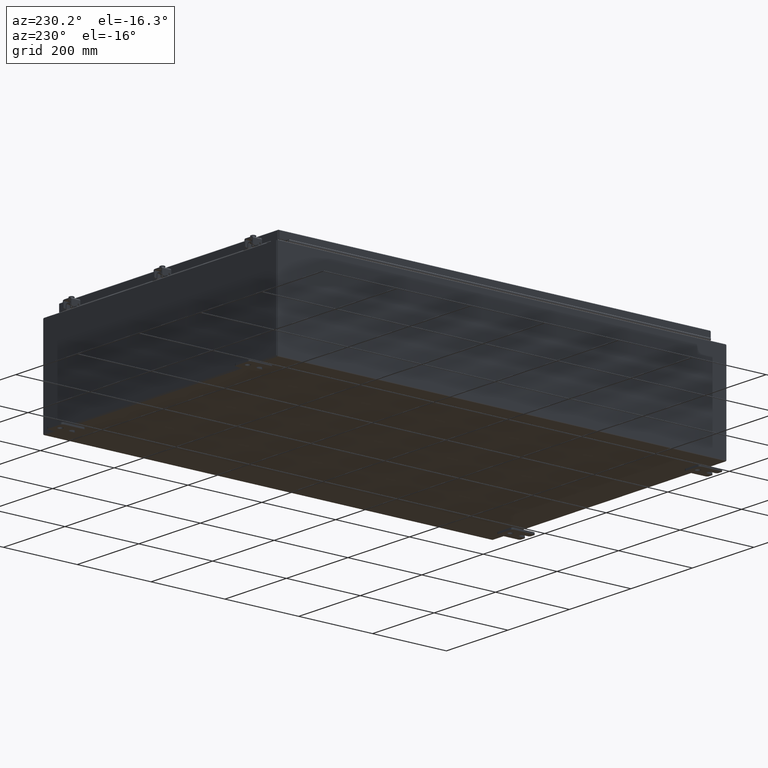
[diagram: clean part render]
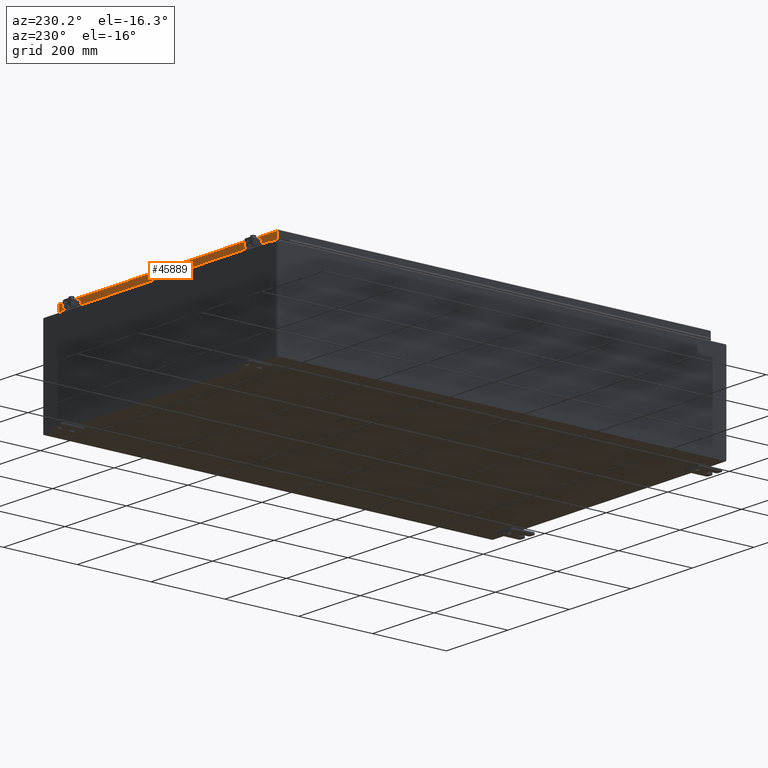
[diagram: same view with one face highlighted and labeled with its STEP entity id]
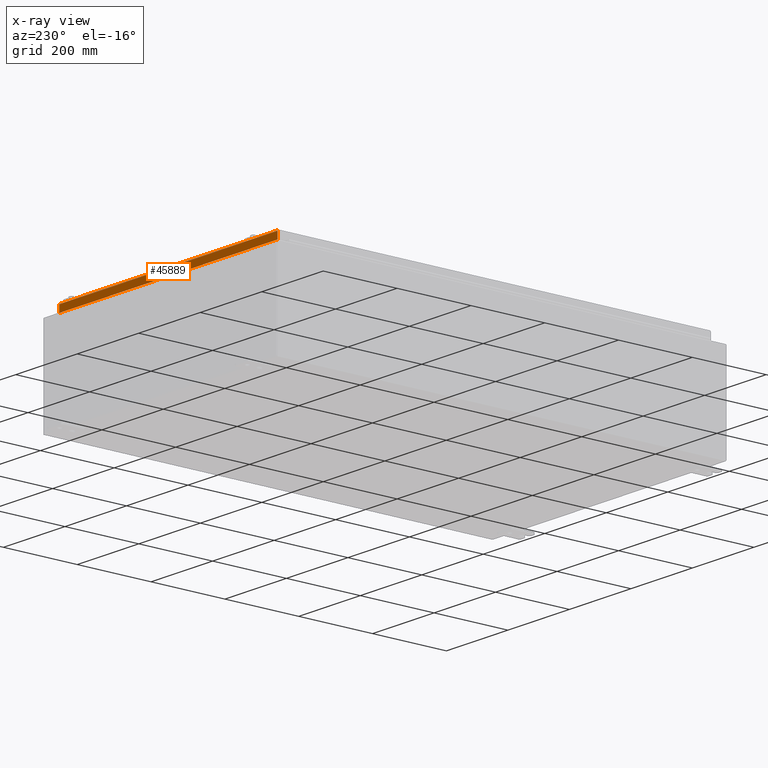
[diagram: x-ray of the same camera — body ghosted, the highlighted face saturated]
A machine part, auxiliary view. The second image highlights one B-rep face of the part: STEP entity #45889.
The next image is the same camera in x-ray: the body ghosted, the highlighted face saturated — about 0% of this face is hidden behind the body in this view.
In plain terms, the highlighted planar face has unit normal (0, -1, -0).
Its self-contained STEP definition (entity closure, byte-faithful):
#594 = VERTEX_POINT ( 'NONE', #28004 ) ;
#3018 = CARTESIAN_POINT ( 'NONE',  ( -13.98915786437626500, 23.09400000000000500, -0.07469999999999958600 ) ) ;
#3779 = EDGE_CURVE ( 'NONE', #47752, #46389, #36916, .T. ) ;
#3936 = EDGE_CURVE ( 'NONE', #594, #51683, #21087, .T. ) ;
#5770 = VECTOR ( 'NONE', #38825, 39.37007874015748100 ) ;
#5830 = DIRECTION ( 'NONE',  ( 1.000000000000000000, -8.758115402030108600E-047, 1.261330583805776300E-016 ) ) ;
#6096 = LINE ( 'NONE', #48884, #25241 ) ;
#7426 = CARTESIAN_POINT ( 'NONE',  ( -13.98915786437626500, 23.09400000000000800, -0.8500000000000032000 ) ) ;
#7976 = FACE_OUTER_BOUND ( 'NONE', #43746, .T. ) ;
#8969 = CARTESIAN_POINT ( 'NONE',  ( 13.98915786437626500, 23.09400000000000500, -0.08769999999999547600 ) ) ;
#9531 = EDGE_CURVE ( 'NONE', #51683, #41255, #6096, .T. ) ;
#10728 = DIRECTION ( 'NONE',  ( 1.000000000000000000, -0.0000000000000000000, -0.0000000000000000000 ) ) ;
#12846 = DIRECTION ( 'NONE',  ( 1.000000000000000000, -8.758115402030108600E-047, 1.261330583805776300E-016 ) ) ;
#14052 = PLANE ( 'NONE',  #39566 ) ;
#14865 = VERTEX_POINT ( 'NONE', #34002 ) ;
#14922 = EDGE_CURVE ( 'NONE', #47752, #594, #45184, .T. ) ;
#16637 = CARTESIAN_POINT ( 'NONE',  ( -13.23915786437626000, 23.09400000000000500, -0.8500000000000064200 ) ) ;
#17013 = CARTESIAN_POINT ( 'NONE',  ( -14.07799999999999800, 23.09400000000000500, -0.08769999999999547600 ) ) ;
#18507 = EDGE_CURVE ( 'NONE', #14865, #46389, #30312, .T. ) ;
#20606 = CARTESIAN_POINT ( 'NONE',  ( -13.23915786437626000, 23.09400000000000500, -0.8500000000000064200 ) ) ;
#21087 = LINE ( 'NONE', #3018, #5770 ) ;
#21431 = ORIENTED_EDGE ( 'NONE', *, *, #3779, .T. ) ;
#24403 = VECTOR ( 'NONE', #31377, 39.37007874015748100 ) ;
#24920 = EDGE_CURVE ( 'NONE', #41255, #14865, #38101, .T. ) ;
#25223 = ORIENTED_EDGE ( 'NONE', *, *, #14922, .F. ) ;
#25241 = VECTOR ( 'NONE', #12846, 39.37007874015748100 ) ;
#28004 = CARTESIAN_POINT ( 'NONE',  ( -13.98915786437626500, 23.09400000000000500, -0.08769999999999549000 ) ) ;
#28101 = ORIENTED_EDGE ( 'NONE', *, *, #24920, .F. ) ;
#30136 = DIRECTION ( 'NONE',  ( 7.111081490452041800E-031, -1.000000000000000000, -5.637761885544694200E-015 ) ) ;
#30312 = LINE ( 'NONE', #32147, #46646 ) ;
#31377 = DIRECTION ( 'NONE',  ( -1.000000000000000000, -7.111081490452042700E-031, -3.990986016271607100E-045 ) ) ;
#32147 = CARTESIAN_POINT ( 'NONE',  ( -14.07799999999999800, 23.09400000000000800, -0.8500000000000032000 ) ) ;
#32234 = DIRECTION ( 'NONE',  ( 0.0000000000000000000, 5.637761885544694200E-015, -1.000000000000000000 ) ) ;
#34002 = CARTESIAN_POINT ( 'NONE',  ( 13.23915786437625100, 23.09400000000000500, -0.8500000000000064200 ) ) ;
#34307 = CARTESIAN_POINT ( 'NONE',  ( -1.642233159404994800E-029, 23.09400000000000500, 1.304592866407807800E-013 ) ) ;
#36090 = CARTESIAN_POINT ( 'NONE',  ( 13.98915786437626700, 23.09400000000000500, 1.304592866407807800E-013 ) ) ;
#36109 = ORIENTED_EDGE ( 'NONE', *, *, #18507, .F. ) ;
#36916 = LINE ( 'NONE', #36090, #37019 ) ;
#37019 = VECTOR ( 'NONE', #32234, 39.37007874015748100 ) ;
#37245 = CARTESIAN_POINT ( 'NONE',  ( 13.98915786437626500, 23.09400000000000800, -0.8499999999999996400 ) ) ;
#38101 = LINE ( 'NONE', #20606, #47577 ) ;
#38825 = DIRECTION ( 'NONE',  ( -0.0000000000000000000, 5.637761885544694200E-015, -1.000000000000000000 ) ) ;
#39566 = AXIS2_PLACEMENT_3D ( 'NONE', #34307, #30136, #42348 ) ;
#41255 = VERTEX_POINT ( 'NONE', #16637 ) ;
#42348 = DIRECTION ( 'NONE',  ( 0.0000000000000000000, 5.637761885544694200E-015, -1.000000000000000000 ) ) ;
#43746 = EDGE_LOOP ( 'NONE', ( #25223, #21431, #36109, #28101, #52123, #52686 ) ) ;
#45184 = LINE ( 'NONE', #17013, #24403 ) ;
#45889 = ADVANCED_FACE ( 'NONE', ( #7976 ), #14052, .F. ) ;
#46389 = VERTEX_POINT ( 'NONE', #37245 ) ;
#46646 = VECTOR ( 'NONE', #5830, 39.37007874015748100 ) ;
#47577 = VECTOR ( 'NONE', #10728, 39.37007874015748100 ) ;
#47752 = VERTEX_POINT ( 'NONE', #8969 ) ;
#48884 = CARTESIAN_POINT ( 'NONE',  ( -14.07799999999999800, 23.09400000000000800, -0.8500000000000032000 ) ) ;
#51683 = VERTEX_POINT ( 'NONE', #7426 ) ;
#52123 = ORIENTED_EDGE ( 'NONE', *, *, #9531, .F. ) ;
#52686 = ORIENTED_EDGE ( 'NONE', *, *, #3936, .F. ) ;